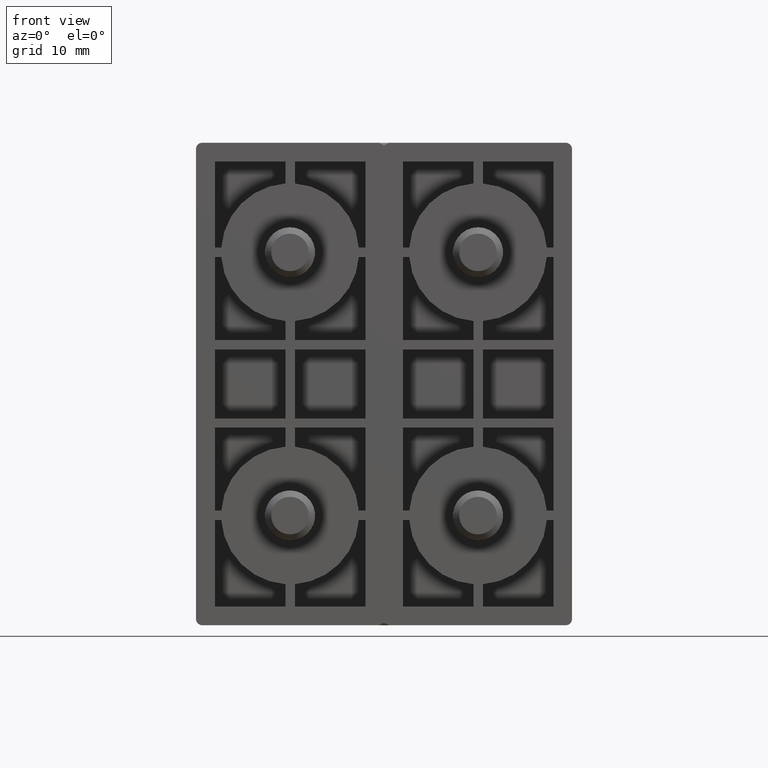
[diagram: clean part render]
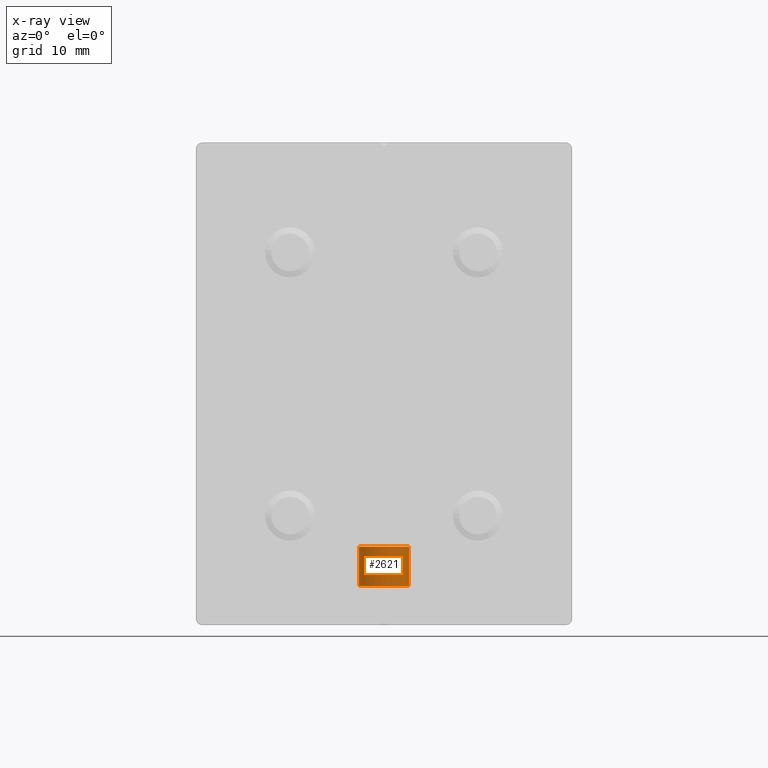
[diagram: x-ray — body ghosted, one internal face saturated and labeled with its STEP entity id]
A machine part, front view, then the same camera in x-ray: the body is ghosted and one INTERNAL B-rep face — a face not visible from any outside direction — is saturated and labeled: STEP entity #2621.
In plain terms, the highlighted cylindrical surface (bore or boss wall) has radius 4 mm, axis along (0, 0, -1).
Its self-contained STEP definition (entity closure, byte-faithful):
#651=CYLINDRICAL_SURFACE('',#2818,4.);
#705=FACE_BOUND('',#919,.T.);
#755=FACE_OUTER_BOUND('',#918,.T.);
#918=EDGE_LOOP('',(#1890));
#919=EDGE_LOOP('',(#1891));
#1127=CIRCLE('',#2819,4.);
#1128=CIRCLE('',#2820,4.);
#1249=VERTEX_POINT('',#3999);
#1250=VERTEX_POINT('',#4001);
#1506=EDGE_CURVE('',#1249,#1249,#1127,.T.);
#1507=EDGE_CURVE('',#1250,#1250,#1128,.T.);
#1890=ORIENTED_EDGE('',*,*,#1506,.F.);
#1891=ORIENTED_EDGE('',*,*,#1507,.F.);
#2621=ADVANCED_FACE('',(#755,#705),#651,.F.);
#2818=AXIS2_PLACEMENT_3D('',#3998,#3168,#3169);
#2819=AXIS2_PLACEMENT_3D('',#4000,#3170,#3171);
#2820=AXIS2_PLACEMENT_3D('',#4002,#3172,#3173);
#3168=DIRECTION('center_axis',(0.,0.,-1.));
#3169=DIRECTION('ref_axis',(-1.,0.,0.));
#3170=DIRECTION('center_axis',(0.,0.,-1.));
#3171=DIRECTION('ref_axis',(1.,0.,0.));
#3172=DIRECTION('center_axis',(0.,0.,1.));
#3173=DIRECTION('ref_axis',(-1.,0.,0.));
#3998=CARTESIAN_POINT('Origin',(0.,0.,38.5));
#3999=CARTESIAN_POINT('',(-4.,0.,-26.));
#4000=CARTESIAN_POINT('Origin',(0.,0.,-26.));
#4001=CARTESIAN_POINT('',(-4.,0.,-32.25));
#4002=CARTESIAN_POINT('Origin',(0.,0.,-32.25));